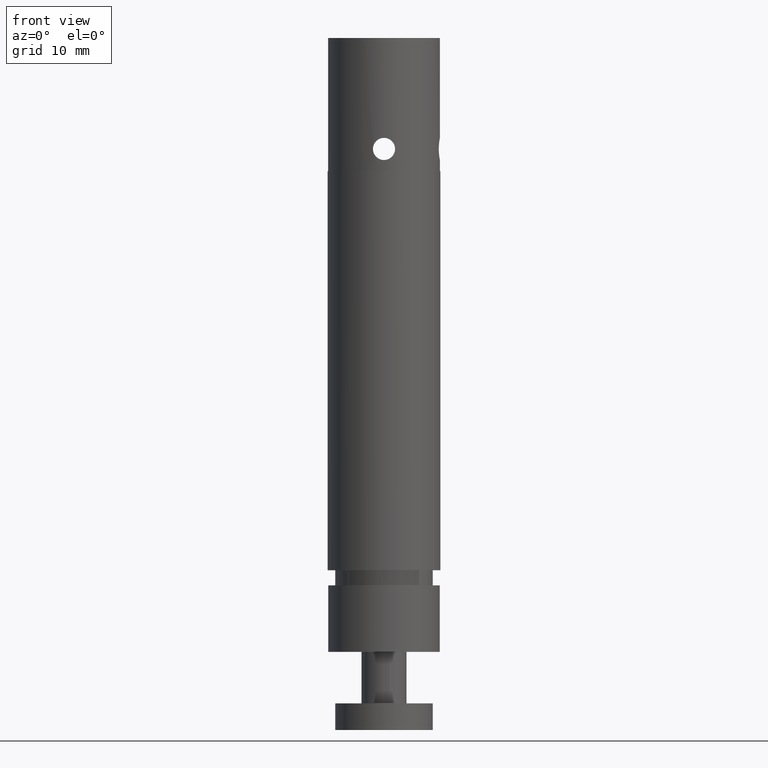
[diagram: clean part render]
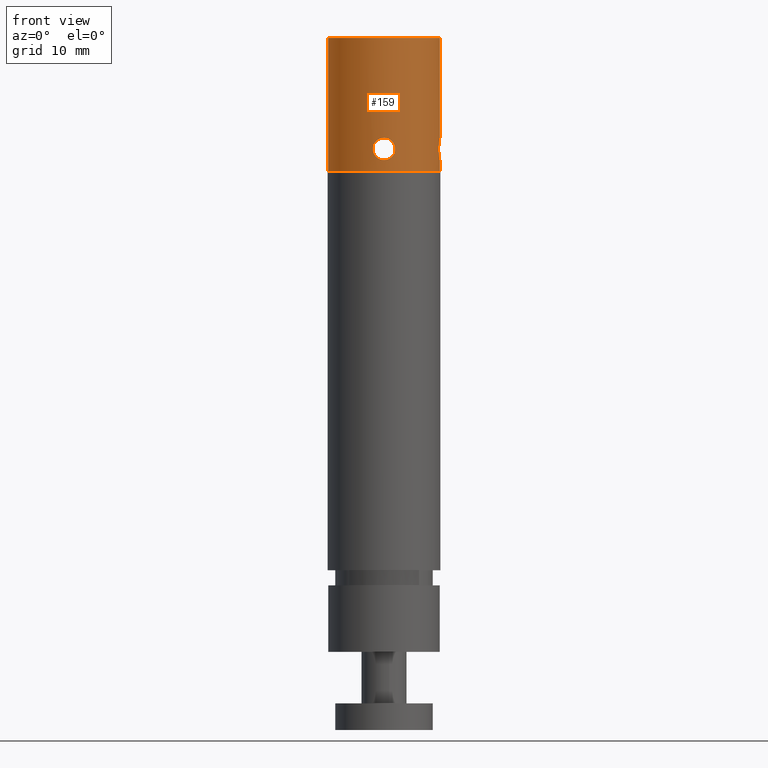
[diagram: same view with one face highlighted and labeled with its STEP entity id]
A machine part, front view. The second image highlights one B-rep face of the part: STEP entity #159.
In plain terms, the highlighted cylindrical surface (partial cylindrical patch) has radius 6.3 mm, axis along (0, -0, 1).
Its self-contained STEP definition (entity closure, byte-faithful):
#27 = EDGE_CURVE ( 'NONE', #62, #117, #566, .T. ) ;
#58 = VERTEX_POINT ( 'NONE', #656 ) ;
#59 = VERTEX_POINT ( 'NONE', #655 ) ;
#61 = EDGE_CURVE ( 'NONE', #59, #62, #654, .T. ) ;
#62 = VERTEX_POINT ( 'NONE', #702 ) ;
#71 = VERTEX_POINT ( 'NONE', #733 ) ;
#73 = EDGE_CURVE ( 'NONE', #71, #74, #771, .T. ) ;
#74 = VERTEX_POINT ( 'NONE', #770 ) ;
#106 = EDGE_CURVE ( 'NONE', #120, #123, #890, .T. ) ;
#117 = VERTEX_POINT ( 'NONE', #929 ) ;
#119 = EDGE_CURVE ( 'NONE', #120, #117, #928, .T. ) ;
#120 = VERTEX_POINT ( 'NONE', #924 ) ;
#123 = VERTEX_POINT ( 'NONE', #923 ) ;
#125 = EDGE_CURVE ( 'NONE', #58, #123, #983, .T. ) ;
#136 = ORIENTED_EDGE ( 'NONE', *, *, #61, .F. ) ;
#137 = ORIENTED_EDGE ( 'NONE', *, *, #166, .T. ) ;
#138 = ORIENTED_EDGE ( 'NONE', *, *, #125, .T. ) ;
#139 = ORIENTED_EDGE ( 'NONE', *, *, #106, .F. ) ;
#140 = ORIENTED_EDGE ( 'NONE', *, *, #119, .T. ) ;
#141 = ORIENTED_EDGE ( 'NONE', *, *, #27, .F. ) ;
#142 = EDGE_LOOP ( 'NONE', ( #143, #145 ) ) ;
#143 = ORIENTED_EDGE ( 'NONE', *, *, #144, .F. ) ;
#144 = EDGE_CURVE ( 'NONE', #74, #71, #1012, .T. ) ;
#145 = ORIENTED_EDGE ( 'NONE', *, *, #73, .F. ) ;
#159 = ADVANCED_FACE ( 'NONE', ( #1161, #1160 ), #1198, .T. ) ;
#160 = EDGE_LOOP ( 'NONE', ( #136, #137, #138, #139, #140, #141 ) ) ;
#166 = EDGE_CURVE ( 'NONE', #59, #58, #1226, .T. ) ;
#562 = DIRECTION ( 'NONE',  ( 1.000000000000000000, 0.0000000000000000000, 0.0000000000000000000 ) ) ;
#563 = DIRECTION ( 'NONE',  ( 0.0000000000000000000, -4.930380657631323800E-032, 1.000000000000000000 ) ) ;
#564 = CARTESIAN_POINT ( 'NONE',  ( 0.03018495505829773400, -0.2577627768316083600, -0.2700585705362995000 ) ) ;
#565 = AXIS2_PLACEMENT_3D ( 'NONE', #564, #563, #562 ) ;
#566 = CIRCLE ( 'NONE', #565, 0.2480314960629921600 ) ;
#654 = LINE ( 'NONE', #705, #704 ) ;
#655 = CARTESIAN_POINT ( 'NONE',  ( -0.2178465410046944400, -0.2577627768316083100, -0.8606097516386617100 ) ) ;
#656 = CARTESIAN_POINT ( 'NONE',  ( 0.2782164511212899000, -0.2577627768316083600, -0.8606097516386617100 ) ) ;
#702 = CARTESIAN_POINT ( 'NONE',  ( -0.2178465410046944400, -0.2577627768316083100, -0.2700585705362995000 ) ) ;
#703 = DIRECTION ( 'NONE',  ( 0.0000000000000000000, -4.930380657631323800E-032, 1.000000000000000000 ) ) ;
#704 = VECTOR ( 'NONE', #703, 39.37007874015748100 ) ;
#705 = CARTESIAN_POINT ( 'NONE',  ( -0.2178465410046944400, -0.2577627768316083100, -1.057460145339449200 ) ) ;
#733 = CARTESIAN_POINT ( 'NONE',  ( 0.03018495505829773800, -0.5057942728946005500, -0.7129719563630718700 ) ) ;
#752 = CARTESIAN_POINT ( 'NONE',  ( 0.02366603418100111900, -0.5057942728946006600, -0.8113971532134648400 ) ) ;
#753 = CARTESIAN_POINT ( 'NONE',  ( 0.01719452522478339500, -0.5055249572413688100, -0.8100825244473930400 ) ) ;
#754 = CARTESIAN_POINT ( 'NONE',  ( 0.005358723631083177200, -0.5046200383042668300, -0.8051569296103359100 ) ) ;
#755 = CARTESIAN_POINT ( 'NONE',  ( -0.0001157680356953231800, -0.5039788068026486200, -0.8014867897925734800 ) ) ;
#756 = CARTESIAN_POINT ( 'NONE',  ( -0.009156425535265536000, -0.5026968965612029800, -0.7924344352730720000 ) ) ;
#757 = CARTESIAN_POINT ( 'NONE',  ( -0.01281421135557109200, -0.5020514920577732200, -0.7869709881177698900 ) ) ;
#758 = CARTESIAN_POINT ( 'NONE',  ( -0.01774193445056345500, -0.5011326968323005500, -0.7750806337074908100 ) ) ;
#759 = CARTESIAN_POINT ( 'NONE',  ( -0.01903092854910536800, -0.5008623857396989900, -0.7686581412792216100 ) ) ;
#760 = CARTESIAN_POINT ( 'NONE',  ( -0.01902434555959864300, -0.5008637183830996200, -0.7556611159703746600 ) ) ;
#761 = CARTESIAN_POINT ( 'NONE',  ( -0.01773888147489636700, -0.5011334902839789100, -0.7492620566080781000 ) ) ;
#762 = CARTESIAN_POINT ( 'NONE',  ( -0.01277450982092668900, -0.5020586684296186600, -0.7373215412024615200 ) ) ;
#763 = CARTESIAN_POINT ( 'NONE',  ( -0.009132471491097205900, -0.5027010855138673900, -0.7318997237990609900 ) ) ;
#764 = CARTESIAN_POINT ( 'NONE',  ( -5.526411703731104100E-005, -0.5039865860678807200, -0.7228328056182551400 ) ) ;
#765 = CARTESIAN_POINT ( 'NONE',  ( 0.005415062202418630500, -0.5046258506289352800, -0.7191791878566286000 ) ) ;
#766 = CARTESIAN_POINT ( 'NONE',  ( 0.01726376838569165100, -0.5055287303678598400, -0.7142674168104178300 ) ) ;
#767 = CARTESIAN_POINT ( 'NONE',  ( 0.02375414719959211000, -0.5057942728946005500, -0.7129719563630719800 ) ) ;
#769 = CARTESIAN_POINT ( 'NONE',  ( 0.03018495505829773800, -0.5057942728946005500, -0.7129719563630718700 ) ) ;
#770 = CARTESIAN_POINT ( 'NONE',  ( 0.03018495505829780000, -0.5057942728946005500, -0.8113971532134648400 ) ) ;
#771 = B_SPLINE_CURVE_WITH_KNOTS ( 'NONE', 3,
 ( #769, #767, #766, #765, #764, #763, #762, #761, #760, #759, #758, #757, #756, #755, #754, #753, #752, #823 ),
 .UNSPECIFIED., .F., .F.,
 ( 4, 2, 2, 2, 2, 2, 2, 2, 4 ),
 ( 0.003917805345165820300, 0.004407404700005942300, 0.004897004054846064300, 0.005386603409686186200, 0.005876202764526308200, 0.006365802119366431100, 0.006855401474206553000, 0.007345000829046675000, 0.007834600183886797000 ),
 .UNSPECIFIED. ) ;
#823 = CARTESIAN_POINT ( 'NONE',  ( 0.03018495505829780000, -0.5057942728946005500, -0.8113971532134648400 ) ) ;
#863 = CARTESIAN_POINT ( 'NONE',  ( 0.2782164511212898400, -0.2577627768316083100, -0.8113971532134648400 ) ) ;
#864 = CARTESIAN_POINT ( 'NONE',  ( 0.2782164511212900100, -0.2642816977089050300, -0.8113971532134648400 ) ) ;
#865 = CARTESIAN_POINT ( 'NONE',  ( 0.2779471354680581600, -0.2707532066651227600, -0.8100825244473929300 ) ) ;
#866 = CARTESIAN_POINT ( 'NONE',  ( 0.2770422165309562900, -0.2825890082588229400, -0.8051569296103358000 ) ) ;
#867 = CARTESIAN_POINT ( 'NONE',  ( 0.2764009850293379100, -0.2880634999256013200, -0.8014867897925734800 ) ) ;
#868 = CARTESIAN_POINT ( 'NONE',  ( 0.2751190747878923800, -0.2971041574251715400, -0.7924344352730717800 ) ) ;
#869 = CARTESIAN_POINT ( 'NONE',  ( 0.2744736702844626800, -0.3007619432454772300, -0.7869709881177696700 ) ) ;
#870 = CARTESIAN_POINT ( 'NONE',  ( 0.2735548750589899500, -0.3056896663404695700, -0.7750806337074904700 ) ) ;
#871 = CARTESIAN_POINT ( 'NONE',  ( 0.2732845639663882800, -0.3069786604390114000, -0.7686581412792216100 ) ) ;
#872 = CARTESIAN_POINT ( 'NONE',  ( 0.2732858966097889700, -0.3069720774495046100, -0.7556611159703745500 ) ) ;
#873 = CARTESIAN_POINT ( 'NONE',  ( 0.2735556685106681500, -0.3056866133648024100, -0.7492620566080779900 ) ) ;
#874 = CARTESIAN_POINT ( 'NONE',  ( 0.2744808466563079500, -0.3007222417108327300, -0.7373215412024614100 ) ) ;
#875 = CARTESIAN_POINT ( 'NONE',  ( 0.2751232637405566800, -0.2970802033810032700, -0.7318997237990609900 ) ) ;
#876 = CARTESIAN_POINT ( 'NONE',  ( 0.2764087642945702300, -0.2880029960069432900, -0.7228328056182551400 ) ) ;
#877 = CARTESIAN_POINT ( 'NONE',  ( 0.2770480288556246300, -0.2825326696874872500, -0.7191791878566286000 ) ) ;
#878 = CARTESIAN_POINT ( 'NONE',  ( 0.2779509085945492400, -0.2706839635042144200, -0.7142674168104178300 ) ) ;
#879 = CARTESIAN_POINT ( 'NONE',  ( 0.2782164511212899500, -0.2641935846903139500, -0.7129719563630719800 ) ) ;
#889 = CARTESIAN_POINT ( 'NONE',  ( 0.2782164511212899000, -0.2577627768316083100, -0.7129719563630718700 ) ) ;
#890 = B_SPLINE_CURVE_WITH_KNOTS ( 'NONE', 3,
 ( #889, #879, #878, #877, #876, #875, #874, #873, #872, #871, #870, #869, #868, #867, #866, #865, #864, #863 ),
 .UNSPECIFIED., .F., .F.,
 ( 4, 2, 2, 2, 2, 2, 2, 2, 4 ),
 ( 0.003917805345165820300, 0.004407404700005941400, 0.004897004054846063400, 0.005386603409686184500, 0.005876202764526305600, 0.006365802119366427600, 0.006855401474206548700, 0.007345000829046670700, 0.007834600183886791800 ),
 .UNSPECIFIED. ) ;
#923 = CARTESIAN_POINT ( 'NONE',  ( 0.2782164511212898400, -0.2577627768316083100, -0.8113971532134648400 ) ) ;
#924 = CARTESIAN_POINT ( 'NONE',  ( 0.2782164511212899000, -0.2577627768316083100, -0.7129719563630718700 ) ) ;
#925 = DIRECTION ( 'NONE',  ( 0.0000000000000000000, -4.930380657631323800E-032, 1.000000000000000000 ) ) ;
#926 = VECTOR ( 'NONE', #925, 39.37007874015748100 ) ;
#927 = CARTESIAN_POINT ( 'NONE',  ( 0.2782164511212899000, -0.2577627768316083600, -1.057460145339449200 ) ) ;
#928 = LINE ( 'NONE', #927, #926 ) ;
#929 = CARTESIAN_POINT ( 'NONE',  ( 0.2782164511212899000, -0.2577627768316083600, -0.2700585705362995000 ) ) ;
#980 = DIRECTION ( 'NONE',  ( 0.0000000000000000000, -4.930380657631323800E-032, 1.000000000000000000 ) ) ;
#981 = VECTOR ( 'NONE', #980, 39.37007874015748100 ) ;
#982 = CARTESIAN_POINT ( 'NONE',  ( 0.2782164511212899000, -0.2577627768316083600, -1.057460145339449200 ) ) ;
#983 = LINE ( 'NONE', #982, #981 ) ;
#1010 = CARTESIAN_POINT ( 'NONE',  ( 0.03670555777286976800, -0.5057942728946006600, -0.8113971532134649500 ) ) ;
#1012 = B_SPLINE_CURVE_WITH_KNOTS ( 'NONE', 3,
 ( #1015, #1010, #1067, #1066, #1065, #1064, #1063, #1062, #1061, #1060, #1059, #1058, #1057, #1056, #1055, #1054, #1053, #1052, #1051, #1050 ),
 .UNSPECIFIED., .F., .F.,
 ( 4, 2, 2, 2, 2, 2, 2, 2, 2, 4 ),
 ( 1.843143693225357500E-018, 0.0004897256681457345900, 0.0009794513362914674400, 0.001469177004437200100, 0.001958902672582932700, 0.002203765506655793600, 0.002448628340728654900, 0.002938354008874376700, 0.003428079677020098500, 0.003917805345165820300 ),
 .UNSPECIFIED. ) ;
#1015 = CARTESIAN_POINT ( 'NONE',  ( 0.03018495505829780000, -0.5057942728946005500, -0.8113971532134648400 ) ) ;
#1050 = CARTESIAN_POINT ( 'NONE',  ( 0.03018495505829773800, -0.5057942728946005500, -0.7129719563630718700 ) ) ;
#1051 = CARTESIAN_POINT ( 'NONE',  ( 0.03661742202171889400, -0.5057942728946005500, -0.7129719563630718700 ) ) ;
#1052 = CARTESIAN_POINT ( 'NONE',  ( 0.04308689269236872600, -0.5055303382886640100, -0.7142585427226927400 ) ) ;
#1053 = CARTESIAN_POINT ( 'NONE',  ( 0.05498576832942326400, -0.5046233532025227200, -0.7191929010829978300 ) ) ;
#1054 = CARTESIAN_POINT ( 'NONE',  ( 0.06040577108464281100, -0.5039896561740309100, -0.7228089697401454100 ) ) ;
#1055 = CARTESIAN_POINT ( 'NONE',  ( 0.06955576440562844000, -0.5026932020615951800, -0.7319575173794137200 ) ) ;
#1056 = CARTESIAN_POINT ( 'NONE',  ( 0.07317288989969784900, -0.5020535738995817200, -0.7373720723073578000 ) ) ;
#1057 = CARTESIAN_POINT ( 'NONE',  ( 0.07688376789740472600, -0.5013616831866276600, -0.7463246613637720700 ) ) ;
#1058 = CARTESIAN_POINT ( 'NONE',  ( 0.07781604242531785200, -0.5011787078339241500, -0.7493964132074666400 ) ) ;
#1059 = CARTESIAN_POINT ( 'NONE',  ( 0.07907664112355401700, -0.5009286440564005800, -0.7557146179607745500 ) ) ;
#1060 = CARTESIAN_POINT ( 'NONE',  ( 0.07939881089167195900, -0.5008627962370246800, -0.7589850681590107900 ) ) ;
#1061 = CARTESIAN_POINT ( 'NONE',  ( 0.07939502733410989900, -0.5008635621706907200, -0.7686413758362863300 ) ) ;
#1062 = CARTESIAN_POINT ( 'NONE',  ( 0.07809505053967427700, -0.5011359251070665000, -0.7751294147616192300 ) ) ;
#1063 = CARTESIAN_POINT ( 'NONE',  ( 0.07318227828832374300, -0.5020517384029314900, -0.7869671463359041400 ) ) ;
#1064 = CARTESIAN_POINT ( 'NONE',  ( 0.06951891848588003000, -0.5026982071957822900, -0.7924454493725158200 ) ) ;
#1065 = CARTESIAN_POINT ( 'NONE',  ( 0.06046551308706776100, -0.5039814063706256100, -0.8015033826628071800 ) ) ;
#1066 = CARTESIAN_POINT ( 'NONE',  ( 0.05501590266400670900, -0.5046204957804144600, -0.8051601581978995400 ) ) ;
#1067 = CARTESIAN_POINT ( 'NONE',  ( 0.04310293941130973600, -0.5055296734176142300, -0.8101074525269768000 ) ) ;
#1160 = FACE_BOUND ( 'NONE', #142, .T. ) ;
#1161 = FACE_OUTER_BOUND ( 'NONE', #160, .T. ) ;
#1195 = DIRECTION ( 'NONE',  ( 1.000000000000000000, 0.0000000000000000000, 0.0000000000000000000 ) ) ;
#1196 = DIRECTION ( 'NONE',  ( 0.0000000000000000000, -4.930380657631323800E-032, 1.000000000000000000 ) ) ;
#1197 = AXIS2_PLACEMENT_3D ( 'NONE', #1200, #1196, #1195 ) ;
#1198 = CYLINDRICAL_SURFACE ( 'NONE', #1197, 0.2480314960629921600 ) ;
#1200 = CARTESIAN_POINT ( 'NONE',  ( 0.03018495505829773400, -0.2577627768316083600, -1.057460145339449200 ) ) ;
#1222 = DIRECTION ( 'NONE',  ( -1.000000000000000000, 0.0000000000000000000, 0.0000000000000000000 ) ) ;
#1223 = DIRECTION ( 'NONE',  ( 0.0000000000000000000, -4.930380657631323800E-032, 1.000000000000000000 ) ) ;
#1224 = CARTESIAN_POINT ( 'NONE',  ( 0.03018495505829773400, -0.2577627768316083100, -0.8606097516386617100 ) ) ;
#1225 = AXIS2_PLACEMENT_3D ( 'NONE', #1224, #1223, #1222 ) ;
#1226 = CIRCLE ( 'NONE', #1225, 0.2480314960629921600 ) ;